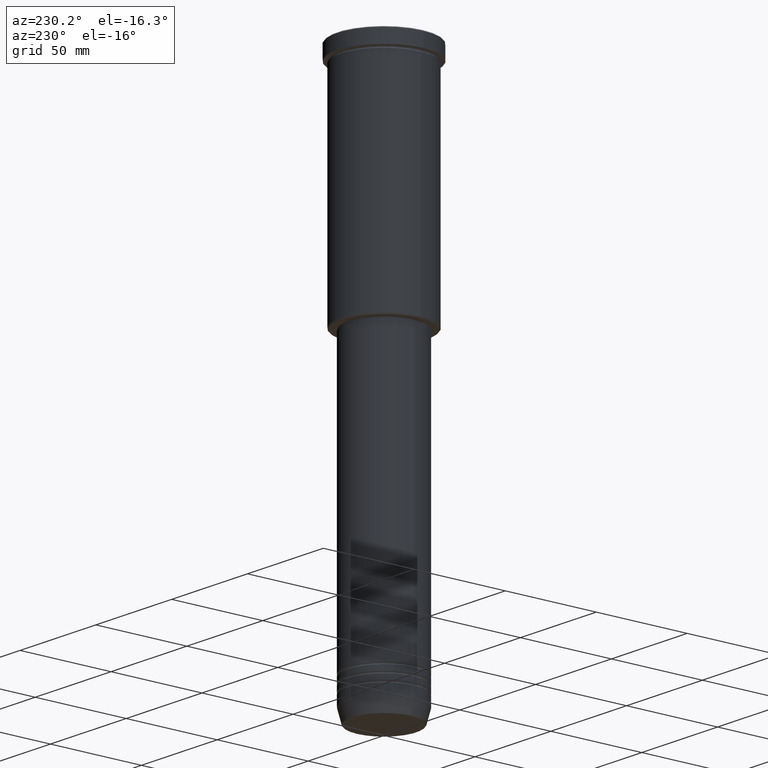
[diagram: clean part render]
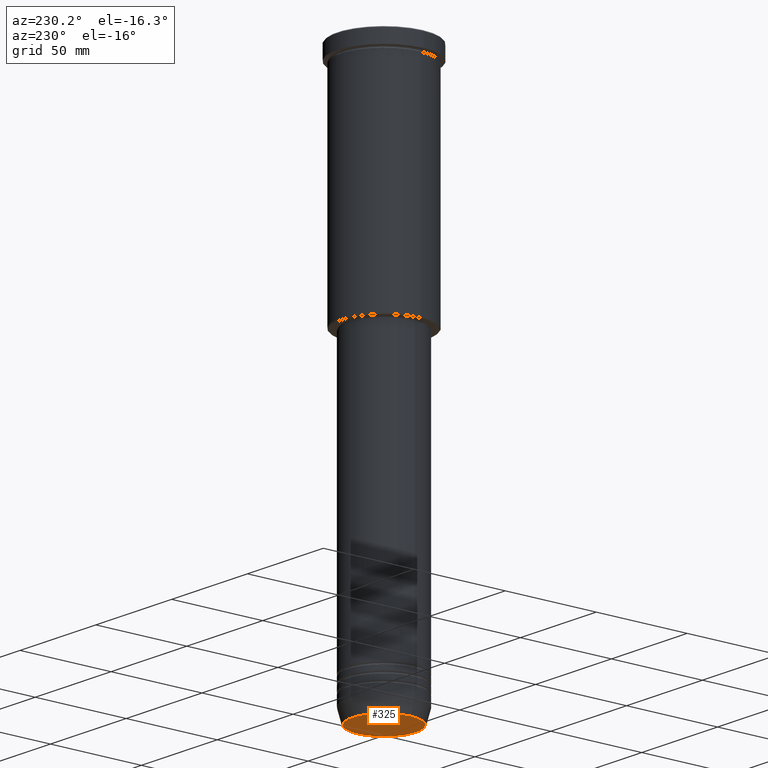
[diagram: same view with one face highlighted and labeled with its STEP entity id]
A machine part, auxiliary view. The second image highlights one B-rep face of the part: STEP entity #325.
In plain terms, the highlighted planar face has unit normal (0, -0, 1).
Its self-contained STEP definition (entity closure, byte-faithful):
#2 = DIRECTION ( 'NONE',  ( 1.000000000000000000, 0.000000000000000000, 0.000000000000000000 ) ) ;
#49 = DIRECTION ( 'NONE',  ( 0.000000000000000000, -0.000000000000000000, 1.000000000000000000 ) ) ;
#80 = CIRCLE ( 'NONE', #197, 17.47274296656153680 ) ;
#197 = AXIS2_PLACEMENT_3D ( 'NONE', #524, #349, #621 ) ;
#241 = AXIS2_PLACEMENT_3D ( 'NONE', #952, #49, #698 ) ;
#325 = ADVANCED_FACE ( 'NONE', ( #944 ), #331, .F. ) ;
#331 = PLANE ( 'NONE',  #241 ) ;
#349 = DIRECTION ( 'NONE',  ( 0.000000000000000000, 0.000000000000000000, -1.000000000000000000 ) ) ;
#391 = CIRCLE ( 'NONE', #870, 17.47274296656153680 ) ;
#423 = EDGE_CURVE ( 'NONE', #1122, #1047, #80, .T. ) ;
#483 = EDGE_LOOP ( 'NONE', ( #988, #748 ) ) ;
#524 = CARTESIAN_POINT ( 'NONE',  ( 0.000000000000000000, 0.000000000000000000, -300.0000000000000000 ) ) ;
#554 = EDGE_CURVE ( 'NONE', #1047, #1122, #391, .T. ) ;
#621 = DIRECTION ( 'NONE',  ( 1.000000000000000000, 0.000000000000000000, 0.000000000000000000 ) ) ;
#648 = DIRECTION ( 'NONE',  ( 0.000000000000000000, 0.000000000000000000, -1.000000000000000000 ) ) ;
#698 = DIRECTION ( 'NONE',  ( 1.000000000000000000, 0.000000000000000000, 0.000000000000000000 ) ) ;
#748 = ORIENTED_EDGE ( 'NONE', *, *, #423, .T. ) ;
#749 = CARTESIAN_POINT ( 'NONE',  ( 17.47274296656153680, 0.000000000000000000, -300.0000000000000000 ) ) ;
#822 = CARTESIAN_POINT ( 'NONE',  ( 0.000000000000000000, 0.000000000000000000, -300.0000000000000000 ) ) ;
#870 = AXIS2_PLACEMENT_3D ( 'NONE', #822, #648, #2 ) ;
#940 = CARTESIAN_POINT ( 'NONE',  ( -17.47274296656153680, 2.169366823916868503E-15, -300.0000000000000000 ) ) ;
#944 = FACE_OUTER_BOUND ( 'NONE', #483, .T. ) ;
#952 = CARTESIAN_POINT ( 'NONE',  ( 0.000000000000000000, 0.000000000000000000, -300.0000000000000000 ) ) ;
#988 = ORIENTED_EDGE ( 'NONE', *, *, #554, .T. ) ;
#1047 = VERTEX_POINT ( 'NONE', #749 ) ;
#1122 = VERTEX_POINT ( 'NONE', #940 ) ;